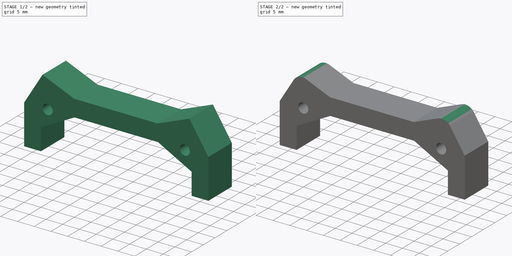
[diagram: build sequence overview — one tinted view per stage of 2, left to right]
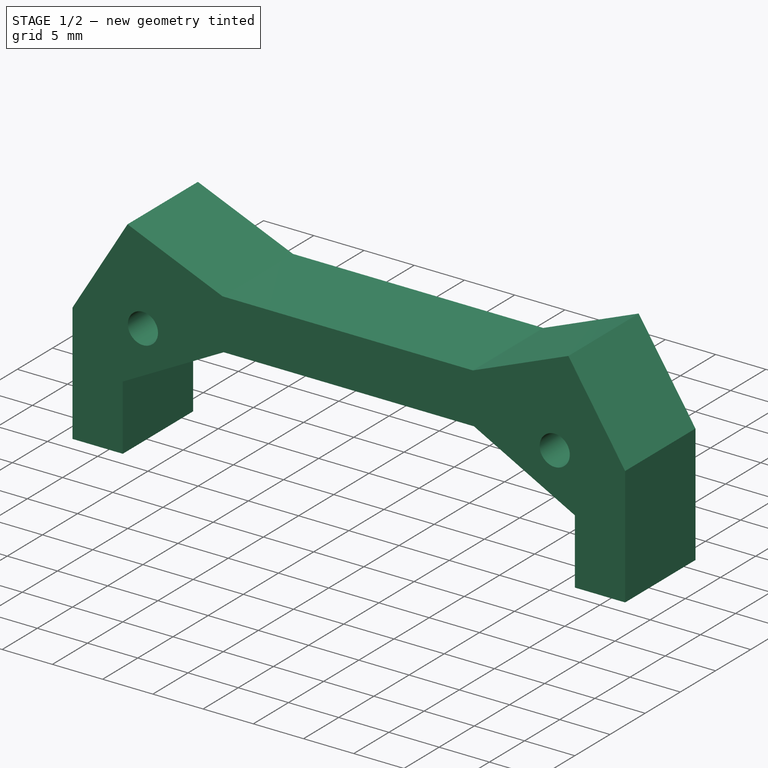
[diagram: stage 1 of 2 — iso view after this stage's code; geometry added in this stage tinted green]
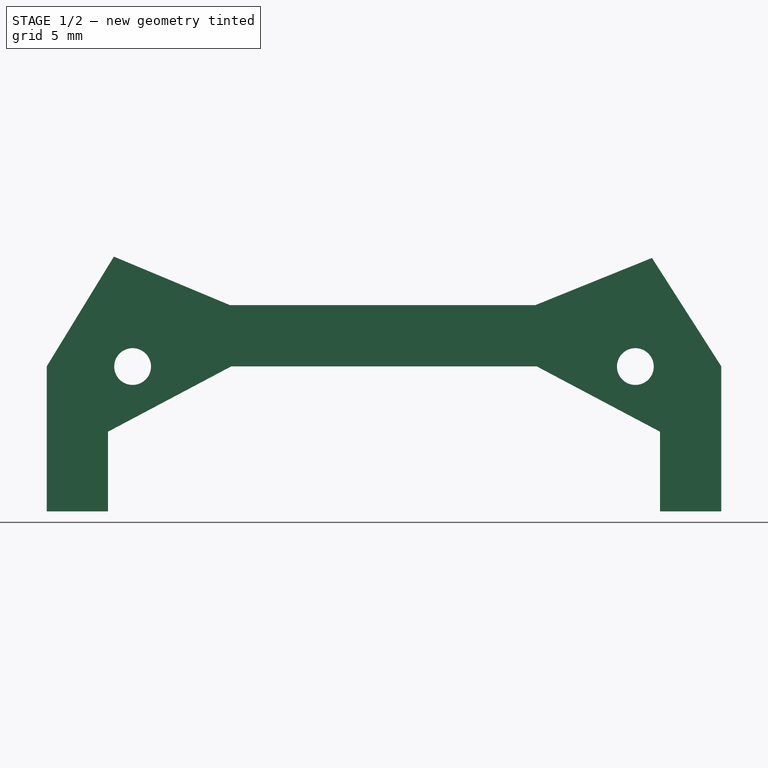
[diagram: stage 1 of 2 — front view after this stage's code; geometry added in this stage tinted green]
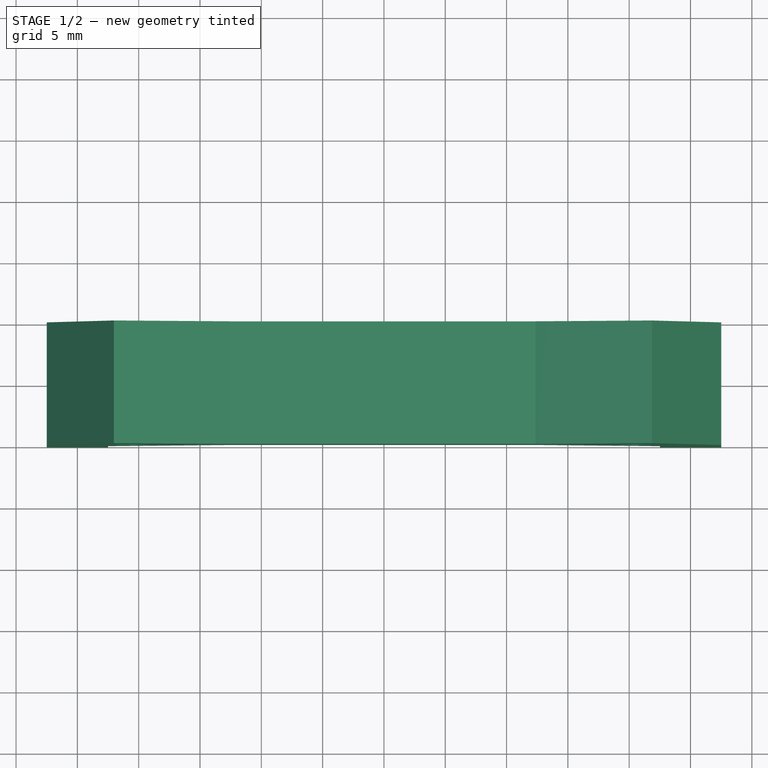
[diagram: stage 1 of 2 — top view after this stage's code; geometry added in this stage tinted green]
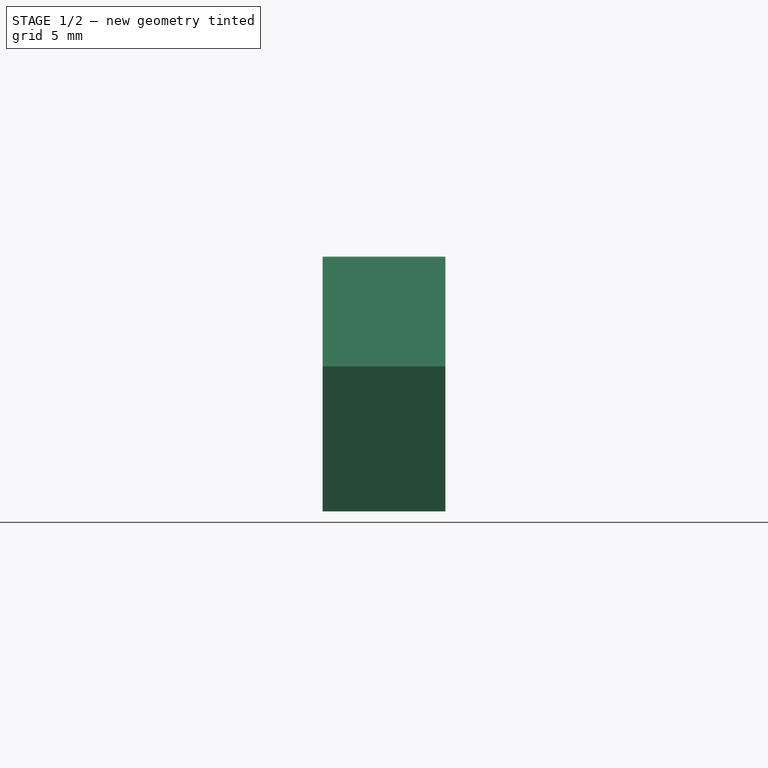
[diagram: stage 1 of 2 — right view after this stage's code; geometry added in this stage tinted green]
FCSTD DOCUMENT  (FreeCAD 0.16R6703 (Git))
Label: Espacer Front 10mm
License: FreeArt
LicenseURL: http://artlibre.org/licence/lal
objects: Sketcher::SketchObject×2, Part::Feature×1, PartDesign::Pad×1, PartDesign::Pocket×1, PartDesign::Fillet×1
note: 8 computed .brp shape members not serialized (recipe doc carries the construction recipe); baked Part::Feature solids carry a one-line shape summary decoded from their .brp

FEATURE [Part::Feature] Peon230_Top_v1_1_cut_front001_solid  label="Peon230_Top_v1_1_cut_front001 (Solid)"
  shape: bbox 55 x 3 x 19.9 mm, 39724 faces (baked)
FEATURE [Sketcher::SketchObject] Sketch
  Placement = pos=(0,0,0) rot=(-1,0,0;4.71239rad)
  sketch-geometry (14):
    g0: LineSegment StartX=72.5 StartY=0 StartZ=0 EndX=72.5 EndY=11.8262 EndZ=0
    g1: LineSegment StartX=72.5 StartY=11.8262 StartZ=0 EndX=77.9767 EndY=20.775 EndZ=0
    g2: LineSegment StartX=77.9767 StartY=20.775 StartZ=0 EndX=87.4341 EndY=16.8227 EndZ=0
    g3: LineSegment StartX=87.4341 StartY=16.8227 StartZ=0 EndX=112.353 EndY=16.8227 EndZ=0
    g4: LineSegment StartX=112.353 StartY=16.8227 StartZ=0 EndX=121.856 EndY=20.6652 EndZ=0
    g5: LineSegment StartX=121.856 StartY=20.6652 StartZ=0 EndX=127.508 EndY=11.8262 EndZ=0
    g6: LineSegment StartX=127.508 StartY=11.8262 StartZ=0 EndX=127.508 EndY=0 EndZ=0
    g7: LineSegment StartX=127.508 StartY=0 StartZ=0 EndX=122.508 EndY=0 EndZ=0
    g8: LineSegment StartX=122.508 StartY=0 StartZ=0 EndX=122.508 EndY=6.5 EndZ=0
    g9: LineSegment StartX=122.508 StartY=6.5 StartZ=0 EndX=112.464 EndY=11.8227 EndZ=0
    g10: LineSegment StartX=112.464 StartY=11.8227 StartZ=0 EndX=87.5444 EndY=11.8227 EndZ=0
    g11: LineSegment StartX=87.5444 StartY=11.8227 StartZ=0 EndX=77.5 EndY=6.5 EndZ=0
    g12: LineSegment StartX=77.5 StartY=6.5 StartZ=0 EndX=77.5 EndY=0 EndZ=0
    g13: LineSegment StartX=77.5 StartY=0 StartZ=0 EndX=72.5 EndY=0 EndZ=0
  constraints (41):
    c: PointOnObject(g0,g-1)
    c: Vertical(g0)
    c: Coincident(g0,g1)
    c: Coincident(g1,g2)
    c: Coincident(g2,g3)
    c: Horizontal(g3)
    c: Coincident(g3,g4)
    c: Coincident(g4,g5)
    c: Coincident(g5,g6)
    c: PointOnObject(g6,g-1)
    c: Vertical(g6)
    c: Coincident(g6,g7)
    c: Horizontal(g7)
    c: Coincident(g7,g8)
    c: Vertical(g8)
    c: Coincident(g9,g10)
    c: Horizontal(g10)
    c: Coincident(g10,g11)
    c: Coincident(g11,g12)
    c: PointOnObject(g12,g-1)
    c: Vertical(g12)
    c: Coincident(g12,g13)
    c: Coincident(g13,g0)
    c: Equal(g12,g8)
    c: Equal(g13,g7)
    c: Equal(g11,g9)
    c: Distance(g-1,g0) = 72.5
    c: Distance(g-1,g6) = 127.508
    c: Coincident(g8,g9)
    c: Equal(g7,g13)
    c: DistanceX(g7,g7) = 5
    c: Equal(g0,g6)
    c: DistanceY(g0,g0) = 11.8262
    c: Equal(g1,g5)
    c: Distance(g1) = 10.4917
    c: Equal(g2,g4)
    c: Distance(g2) = 10.25
    c: DistanceY(g-1,g2) = 16.8227
    c: Distance(g3,g10) = 5
    c: DistanceY(g12,g12) = 6.5
    c: Equal(g3,g10)
FEATURE [PartDesign::Pad] Pad
  Length = 10
  Length2 = 100
  Placement = pos=(0,0,0) rot=(-1,0,0;4.71239rad)
  Sketch = -> Sketch
  Type = 0
FEATURE [Sketcher::SketchObject] Sketch001
  Placement = pos=(0,0,0) rot=(-1,0,0;1.5708rad)
  Support = -> Pad [Face15]
  sketch-geometry (2):
    g0: Circle CenterX=79.5038 CenterY=-11.8107 CenterZ=0 NormalX=0 NormalY=0 NormalZ=1 Radius=1.5
    g1: Circle CenterX=120.501 CenterY=-11.8107 CenterZ=0 NormalX=0 NormalY=0 NormalZ=1 Radius=1.5
  constraints (6):
    c: DistanceY(g0,g-1) = 11.8107
    c: DistanceX(g-2,g0) = 79.5038
    c: Radius(g0) = 1.5
    c: Radius(g1) = 1.5
    c: DistanceY(g-1,g1) = -11.8107
    c: DistanceX(g-1,g1) = 120.501
FEATURE [PartDesign::Pocket] Pocket
  Length = 5
  Placement = pos=(0,0,0) rot=(-1,0,0;4.71239rad)
  Sketch = -> Sketch001
  Type = 1
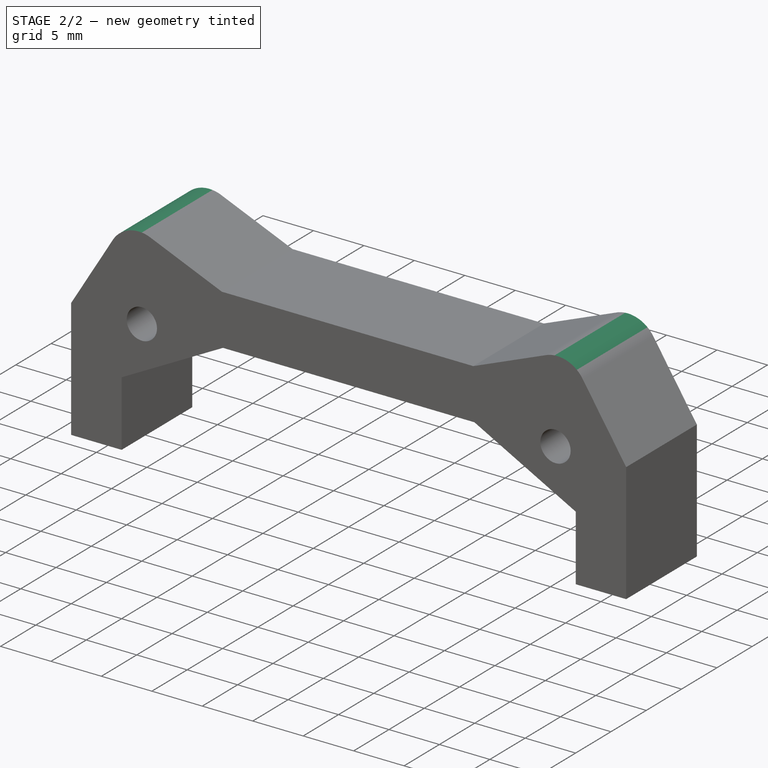
[diagram: stage 2 of 2 — iso view after this stage's code; geometry added in this stage tinted green]
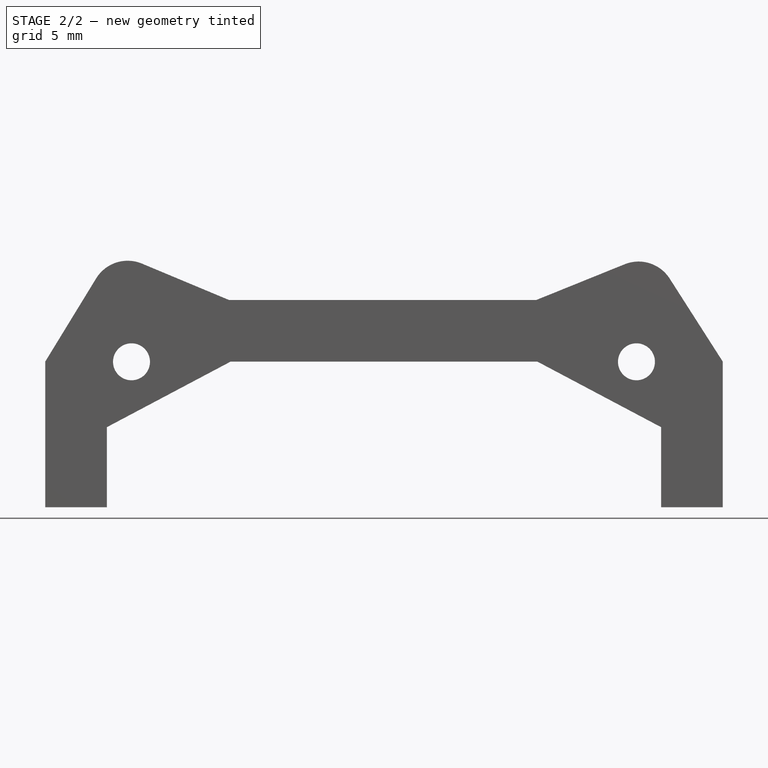
[diagram: stage 2 of 2 — front view after this stage's code; geometry added in this stage tinted green]
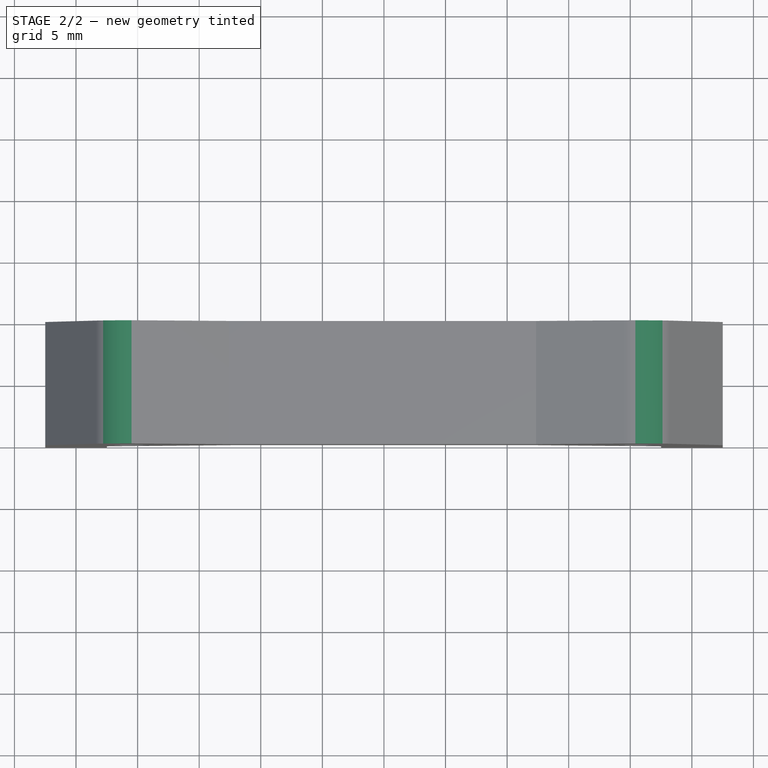
[diagram: stage 2 of 2 — top view after this stage's code; geometry added in this stage tinted green]
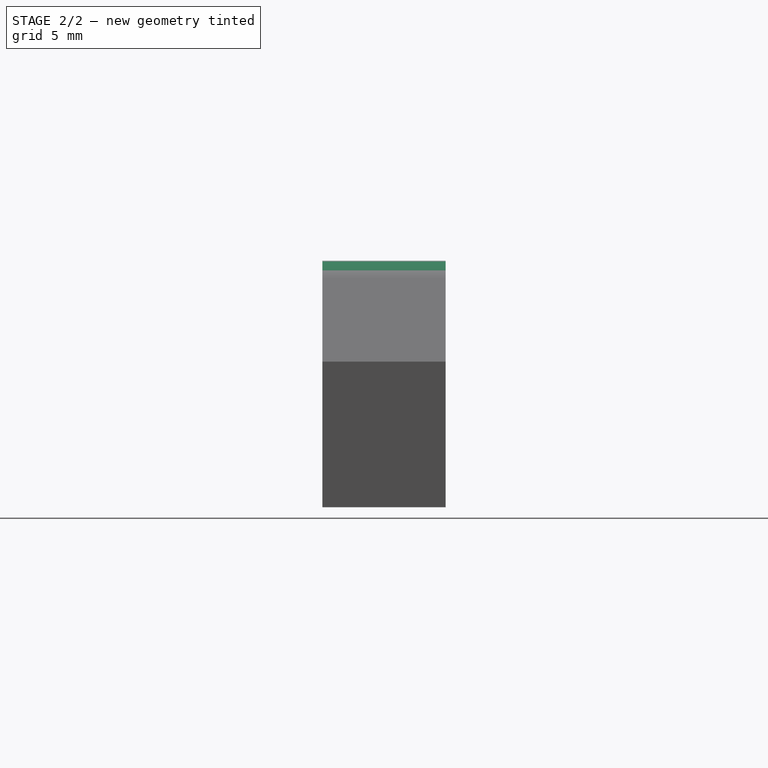
[diagram: stage 2 of 2 — right view after this stage's code; geometry added in this stage tinted green]
FEATURE [PartDesign::Fillet] Fillet
  Base = -> Pocket [Edge8,Edge42]
  Placement = pos=(0,0,0) rot=(-1,0,0;4.71239rad)
  Radius = 3
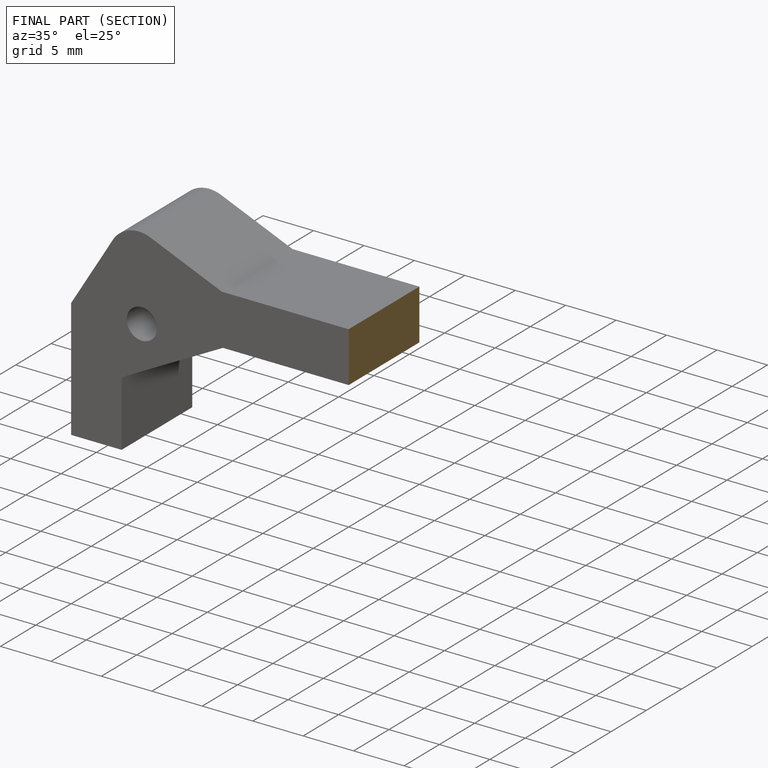
[diagram: finished part — half-section view (interior)]
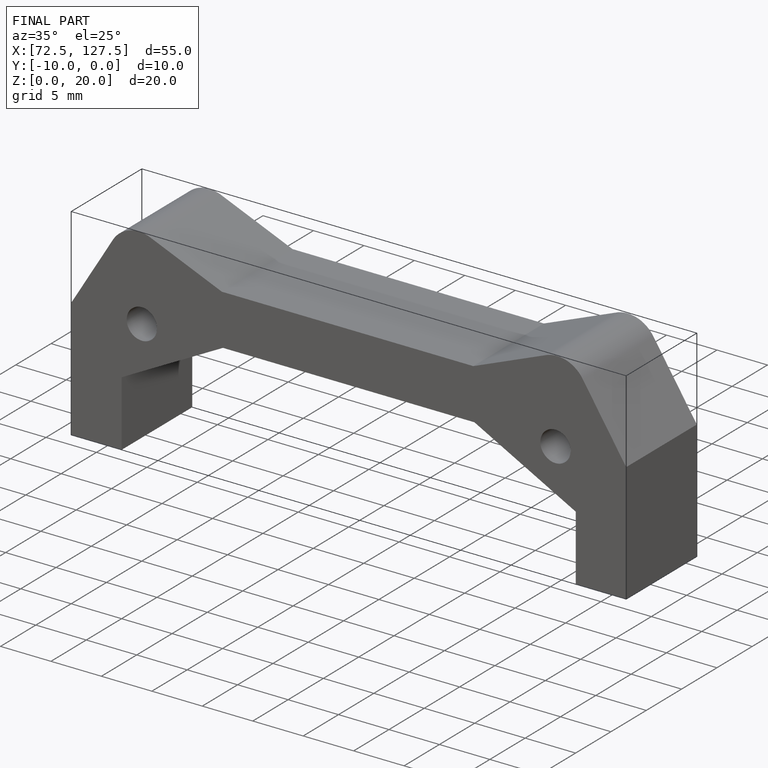
[diagram: finished part — iso view with bounding-box wireframe]
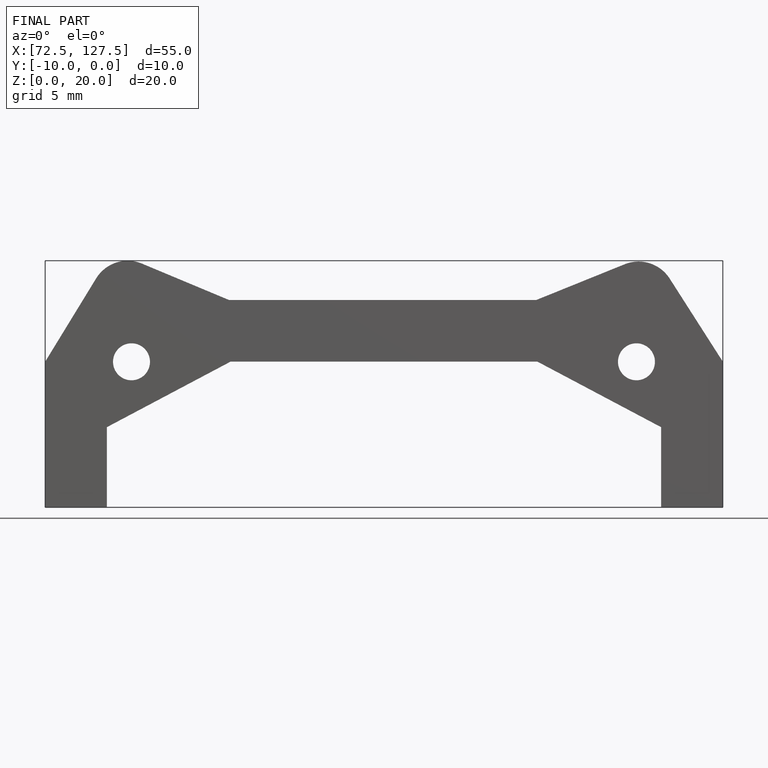
[diagram: finished part — front view with bounding-box wireframe]
